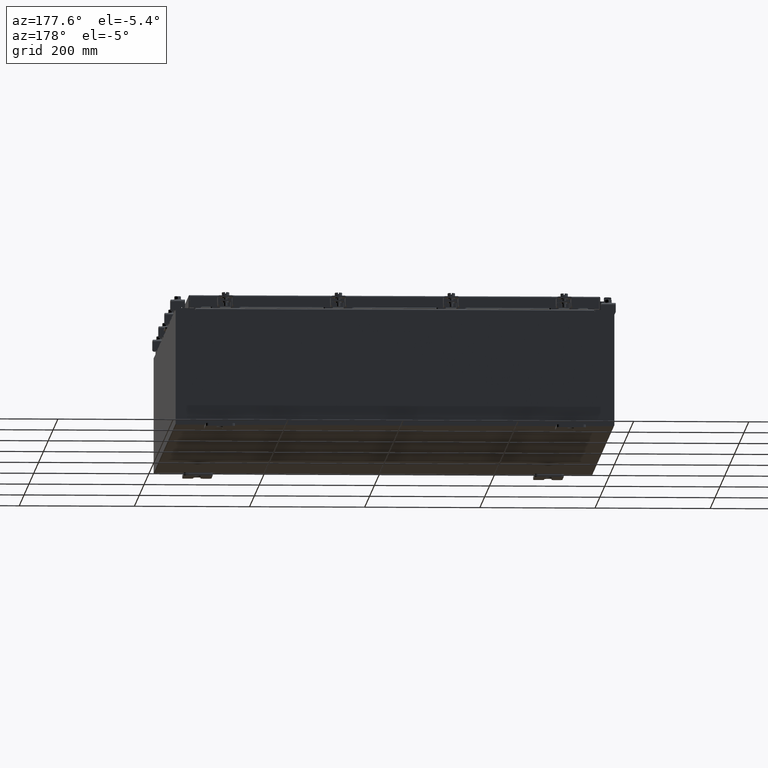
[diagram: clean part render]
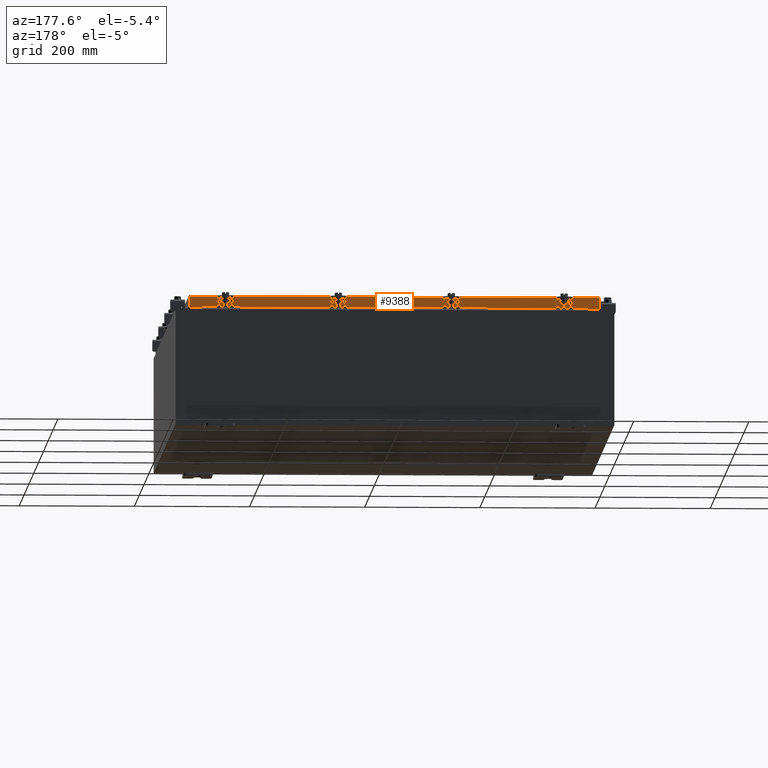
[diagram: same view with one face highlighted and labeled with its STEP entity id]
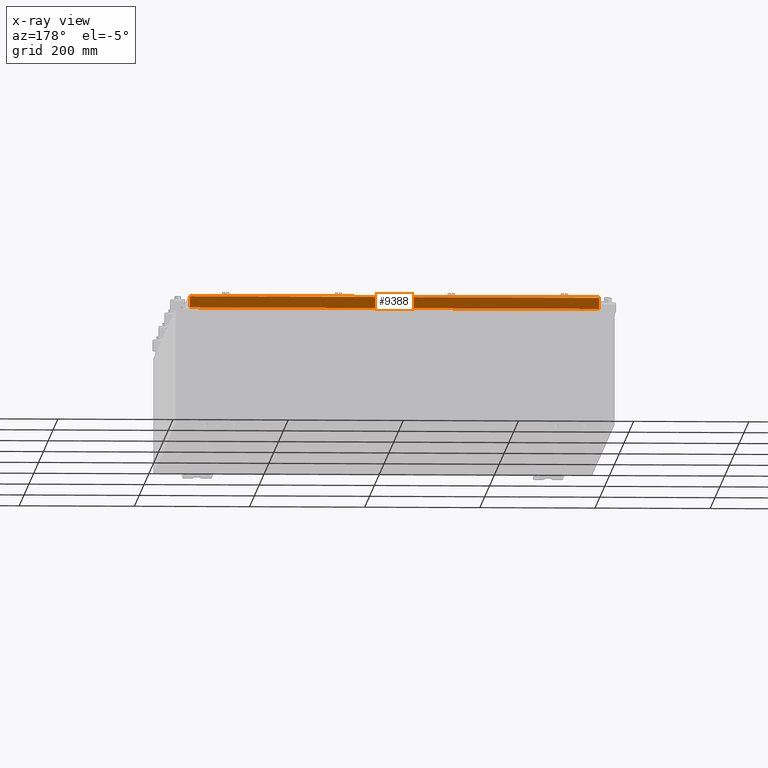
[diagram: x-ray of the same camera — body ghosted, the highlighted face saturated]
A machine part, auxiliary view. The second image highlights one B-rep face of the part: STEP entity #9388.
The next image is the same camera in x-ray: the body ghosted, the highlighted face saturated — about 0% of this face is hidden behind the body in this view.
In plain terms, the highlighted planar face has unit normal (0, -1, -0).
Its self-contained STEP definition (entity closure, byte-faithful):
#599 = CARTESIAN_POINT ( 'NONE',  ( 13.98915786437626700, 17.09399999999999800, 4.808052468849102900E-014 ) ) ;
#607 = DIRECTION ( 'NONE',  ( 1.000000000000000000, -4.379057701015054300E-047, 1.261330583805776300E-016 ) ) ;
#1139 = VECTOR ( 'NONE', #607, 39.37007874015748100 ) ;
#1452 = VERTEX_POINT ( 'NONE', #8522 ) ;
#1667 = EDGE_LOOP ( 'NONE', ( #15618, #5530, #10161, #17792, #19294, #14641 ) ) ;
#2361 = DIRECTION ( 'NONE',  ( 1.000000000000000000, -0.0000000000000000000, -0.0000000000000000000 ) ) ;
#3180 = VECTOR ( 'NONE', #7047, 39.37007874015748100 ) ;
#3335 = CARTESIAN_POINT ( 'NONE',  ( 13.98915786437626500, 17.09399999999999800, -0.08769999999999808500 ) ) ;
#3770 = LINE ( 'NONE', #22175, #3180 ) ;
#4127 = LINE ( 'NONE', #8205, #18629 ) ;
#4134 = AXIS2_PLACEMENT_3D ( 'NONE', #13939, #15867, #4542 ) ;
#4542 = DIRECTION ( 'NONE',  ( 0.0000000000000000000, 2.818880942772347100E-015, -1.000000000000000000 ) ) ;
#5530 = ORIENTED_EDGE ( 'NONE', *, *, #22534, .T. ) ;
#5753 = CARTESIAN_POINT ( 'NONE',  ( -14.07799999999999800, 17.09399999999999800, -0.8500000000000032000 ) ) ;
#6376 = VECTOR ( 'NONE', #7455, 39.37007874015748100 ) ;
#7047 = DIRECTION ( 'NONE',  ( -1.000000000000000000, -1.367515671240777000E-031, -7.762034361881699600E-017 ) ) ;
#7455 = DIRECTION ( 'NONE',  ( 1.000000000000000000, -4.379057701015054300E-047, 1.261330583805776300E-016 ) ) ;
#7495 = EDGE_CURVE ( 'NONE', #14683, #20645, #11173, .T. ) ;
#7604 = EDGE_CURVE ( 'NONE', #1452, #14683, #23890, .T. ) ;
#8054 = CARTESIAN_POINT ( 'NONE',  ( -13.98915786437626900, 17.09399999999999800, -0.8500000000000032000 ) ) ;
#8205 = CARTESIAN_POINT ( 'NONE',  ( -13.98915786437626900, 17.09399999999999800, -0.07470000000000015500 ) ) ;
#8522 = CARTESIAN_POINT ( 'NONE',  ( -13.23915786437626400, 17.09399999999999800, -0.8500000000000043100 ) ) ;
#8690 = VERTEX_POINT ( 'NONE', #8054 ) ;
#9134 = CARTESIAN_POINT ( 'NONE',  ( 13.23915786437625100, 17.09399999999999800, -0.8500000000000043100 ) ) ;
#9388 = ADVANCED_FACE ( 'NONE', ( #20871 ), #23416, .F. ) ;
#10146 = CARTESIAN_POINT ( 'NONE',  ( 13.98915786437626500, 17.09399999999999800, -0.8499999999999999800 ) ) ;
#10161 = ORIENTED_EDGE ( 'NONE', *, *, #7495, .F. ) ;
#10541 = VECTOR ( 'NONE', #15665, 39.37007874015748100 ) ;
#10606 = CARTESIAN_POINT ( 'NONE',  ( -13.98915786437626700, 17.09399999999999800, -0.08769999999999918100 ) ) ;
#10765 = VERTEX_POINT ( 'NONE', #10606 ) ;
#11173 = LINE ( 'NONE', #5753, #1139 ) ;
#11420 = LINE ( 'NONE', #20698, #6376 ) ;
#12988 = EDGE_CURVE ( 'NONE', #10765, #8690, #4127, .T. ) ;
#13939 = CARTESIAN_POINT ( 'NONE',  ( 0.0000000000000000000, 17.09399999999999800, 4.808052468849102900E-014 ) ) ;
#14641 = ORIENTED_EDGE ( 'NONE', *, *, #12988, .F. ) ;
#14683 = VERTEX_POINT ( 'NONE', #9134 ) ;
#15399 = VERTEX_POINT ( 'NONE', #3335 ) ;
#15496 = EDGE_CURVE ( 'NONE', #8690, #1452, #11420, .T. ) ;
#15618 = ORIENTED_EDGE ( 'NONE', *, *, #22136, .F. ) ;
#15665 = DIRECTION ( 'NONE',  ( 0.0000000000000000000, 2.818880942772347100E-015, -1.000000000000000000 ) ) ;
#15691 = DIRECTION ( 'NONE',  ( -0.0000000000000000000, 2.818880942772347100E-015, -1.000000000000000000 ) ) ;
#15867 = DIRECTION ( 'NONE',  ( 3.555540745226020900E-031, -1.000000000000000000, -2.818880942772347100E-015 ) ) ;
#17792 = ORIENTED_EDGE ( 'NONE', *, *, #7604, .F. ) ;
#18629 = VECTOR ( 'NONE', #15691, 39.37007874015748100 ) ;
#18867 = VECTOR ( 'NONE', #2361, 39.37007874015748100 ) ;
#19294 = ORIENTED_EDGE ( 'NONE', *, *, #15496, .F. ) ;
#20645 = VERTEX_POINT ( 'NONE', #10146 ) ;
#20698 = CARTESIAN_POINT ( 'NONE',  ( -14.07799999999999800, 17.09399999999999800, -0.8500000000000032000 ) ) ;
#20871 = FACE_OUTER_BOUND ( 'NONE', #1667, .T. ) ;
#21219 = CARTESIAN_POINT ( 'NONE',  ( -13.23915786437626400, 17.09399999999999800, -0.8500000000000043100 ) ) ;
#22136 = EDGE_CURVE ( 'NONE', #15399, #10765, #3770, .T. ) ;
#22175 = CARTESIAN_POINT ( 'NONE',  ( -14.07799999999999800, 17.09399999999999800, -0.08770000000000026400 ) ) ;
#22402 = LINE ( 'NONE', #599, #10541 ) ;
#22534 = EDGE_CURVE ( 'NONE', #15399, #20645, #22402, .T. ) ;
#23416 = PLANE ( 'NONE',  #4134 ) ;
#23890 = LINE ( 'NONE', #21219, #18867 ) ;